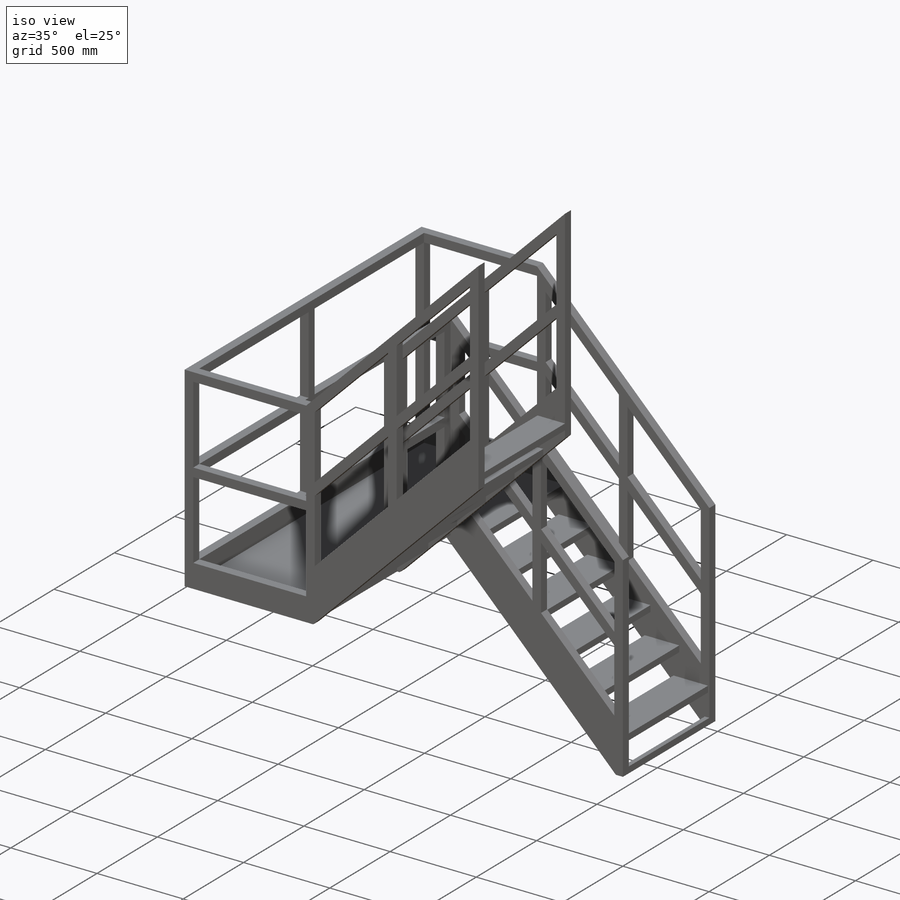
[diagram: iso view]
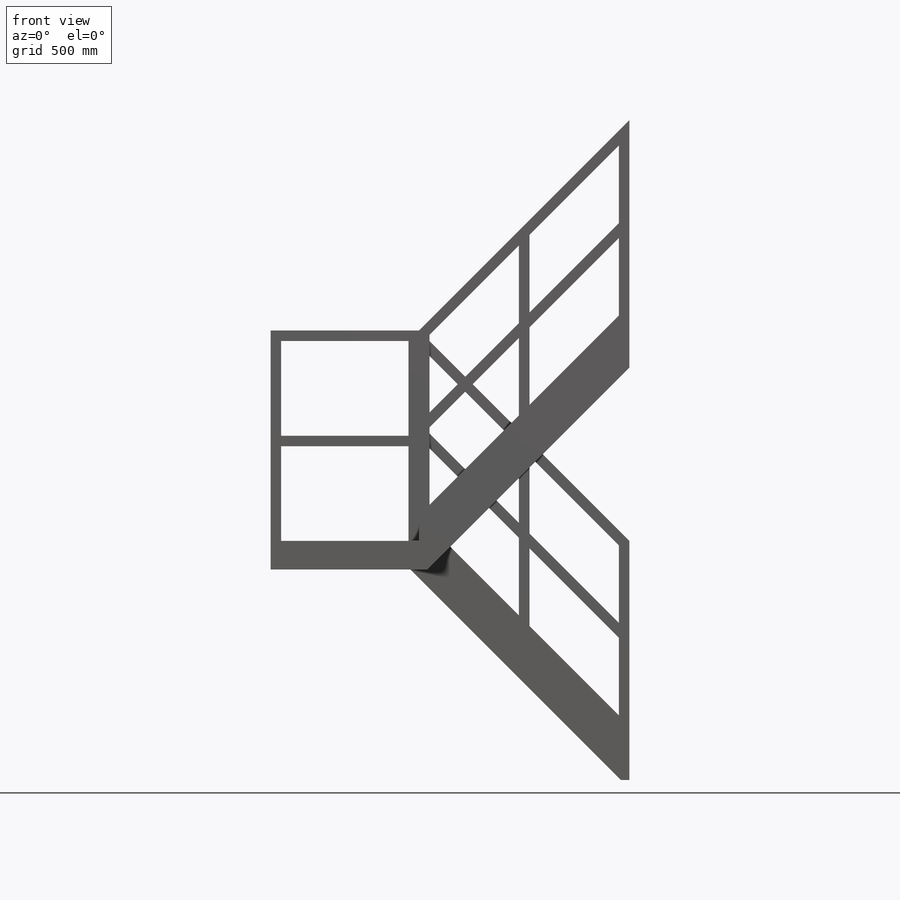
[diagram: front view]
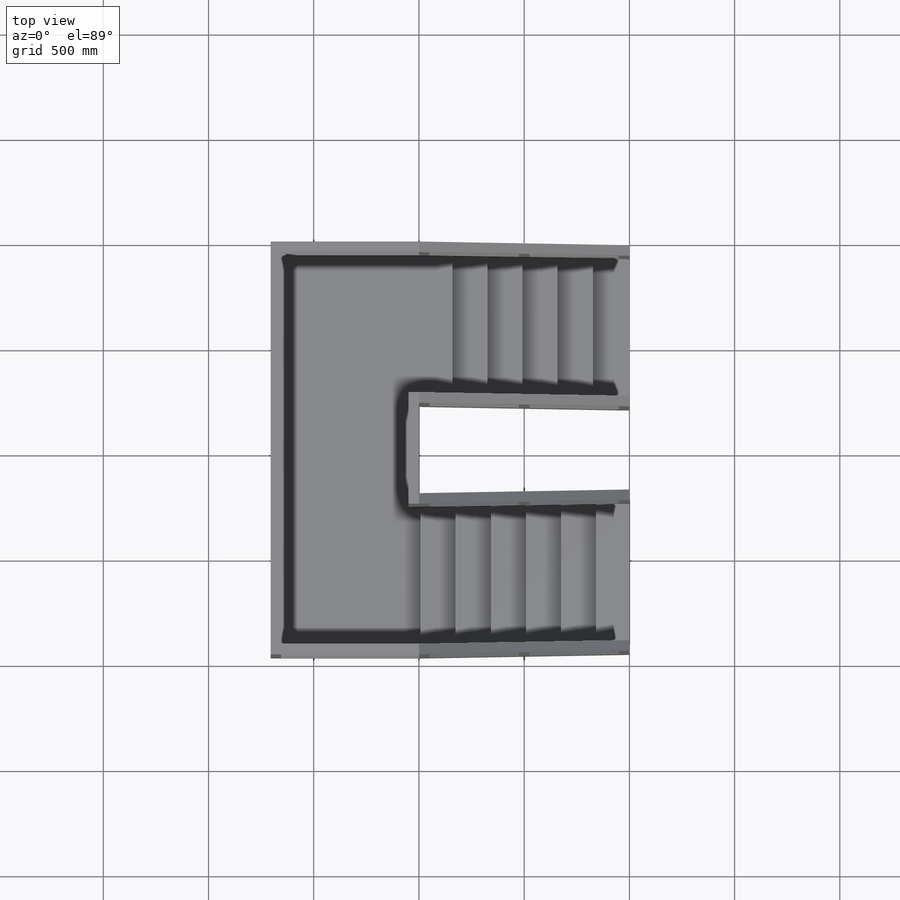
[diagram: top view]
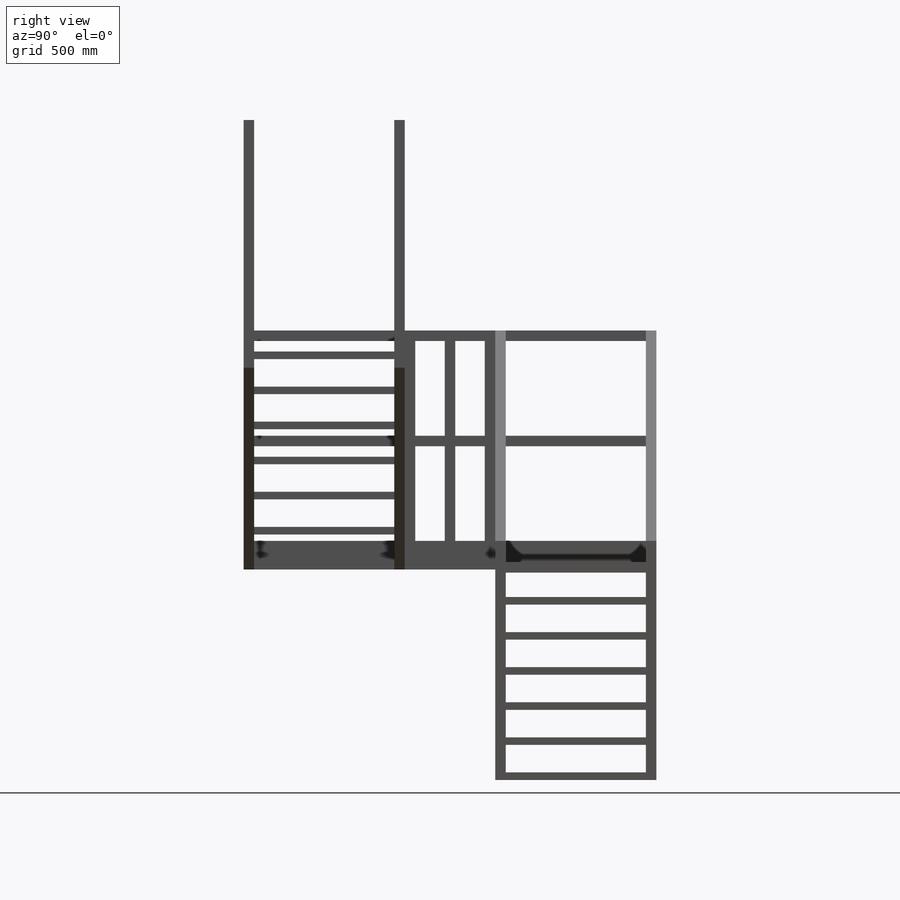
[diagram: right view]
SOLIDWORKS PART (.sldprt)
format: sldprt  version: not decoded by parser v0  size: 822,784 bytes
history: native  units: mm
features: sketch x17, cut_extrude x10, extrude x5, plane x4, material x1, shell x1, pattern_linear x1, pattern_circular x1, move_body x1 + 1 further entry (+12 scaffold rows collapsed; 3 parser-record rows omitted)
feature tree (57):
  scaffold x12  (default folders/planes/origin — collapsed)
  material  "Baustahl Künz"
  plane  "Ebene vorne"
  plane  "Zustieg unten"
  plane  "Mitte Aufstieg"
  sketch  "Layout vorne"  dims[c1.D1=~1588.070596mm c1.Höhe=2000.0mm c1.minimale Breite=1490.0mm c1.maximale Breite=3500.0mm c1.Musterhöhe=3200.0mm c1.max. Breite=4000.0mm c2.max. Breite=3000.0mm c2.D1=~4420.41274mm c3.D1=45.0deg c4.D1=~3545.577014mm c4.Treppenwinkel=45.0deg c4.D2=~937.935918mm c5.D2=~482.561018mm c5.D1=~1366.186817mm c5.Treppenwinkel=45.0deg c6.D1=~506.177258mm c6.D3=705.0mm c7.D1=~530.971122mm c7.D2=700.0mm c8.D1=~1098.939741mm c9.D1=1000.0mm c9.Treppenhöhe=1000.0mm c9.D2=700.0mm c9.D4=36.0mm c9.D5=1100.0mm c9.D6=41.0mm c9.D7=36.0mm c9.D8=~54.447222mm c9.D9=700.0mm c9.D10=700.0mm c10.D9=750.0mm c10.D10=9200.0mm c11.D10=750.0mm c11.D11=41.0mm c11.D6=36.0mm c11.D7=41.0mm c11.D2=~237.234541mm c12.D2=1100.0mm]
  sketch  "Grundriss"  dims[D1=430.0mm D2=766.0mm]
  sketch  "Skizze20"  dims[D1=1226.7662mm D2=~569.191234mm]
  plane  "Ausstieg oben"
  extrude  "Steuerfeature"  [1 undecoded]
  sketch  "Skizze2"
  extrude  "Aufsatz-Linear austragen2"  [1 undecoded]
  shell  "Wandung1"  Thickness=50mm
  parser-record x3  (decoder bookkeeping rows leaked as tree rows — omitted from the tree; the rows remain in map.json)
  sketch  "Skizze5"  dims[c1.D1=50.0mm c1.D2=50.0mm c1.D3=100.0mm c1.D4=950.0mm c2.D1=~74.605434mm c2.D2=100.0mm c2.D3=50.0mm c2.D4=~62.23976mm]
  cut_extrude  "Schnitt-Linear austragen2"  [1 undecoded]
  sketch  "Skizze7"  dims[c1.D1=~97.596687mm c1.D2=~81.833899mm c1.D3=~68.695864mm c2.D1=~81.388571mm]
  cut_extrude  "Schnitt-Linear austragen4"  [1 undecoded]
  sketch  "Skizze6"
  cut_extrude  "Schnitt-Linear austragen3"  [1 undecoded]
  sketch  "Skizze8"  dims[c1.D1=211.0mm c1.D2=~60.74261mm c2.D2=50.0mm c2.D3=50.0mm c2.D4=~66.645596mm]
  cut_extrude  "Schnitt-Linear austragen5"  [1 undecoded]
  sketch  "Skizze9"  dims[D1=50.0mm]
  extrude  "Aufsatz-Linear austragen3"  [1 undecoded]
  sketch  "Skizze3"
  cut_extrude  "Schnitt-Linear austragen1"  [1 undecoded]
  sketch  "Skizze10"
  extrude  "Aufsatz-Linear austragen4"  [1 undecoded]
  sketch  "Skizze11"  dims[c1.D1=~35.078064mm c2.D1=~89.448232mm]
  cut_extrude  "Schnitt-Linear austragen6"  [1 undecoded]
  sketch  "Skizze12"  dims[D1=~40.974092mm D2=~47.215314mm]
  cut_extrude  "Schnitt-Linear austragen7"  [1 undecoded]
  sketch  "Skizze15"  dims[D1=36.0mm D2=200.0mm Trittabstand 1. Stufe=~166.666667mm D4=655.0mm]
  extrude  "Treppenstufe"  [1 undecoded]
  pattern_linear  "Muster Treppenstufe"  Count1=6 Count2=1 Spacing1=235.70226mm Spacing2=50mm Anzahl Stufen=6 Stufenabstand Schräg=235.70226mm
  pattern_circular  "drehen 2tes Podest"  Count=2 Angle=180deg
  move_body  "verschieben 2tes Podest"
  "Deckungsgleich1"
  cut_extrude  "Schnitt-2-Podeste"  [1 undecoded]
  sketch  "Skizze19"  dims[D1=~2044.752515mm D2=~649.072423mm]
  sketch  "Muster_Rahmen"  dims[c1.D1=~12433.383223mm c1.D2=~9487.889248mm c2.D1=1000.0mm c2.D2=1000.0mm c3.D1=2000.0mm c3.D2=90.0deg c3.D3=0.0mm]
  cut_extrude  "Schnitt-unten"  [1 undecoded]
  cut_extrude  "Schnitt-oben"  [1 undecoded]
  sketch  "Skizze19<3>"  dims[D2=50.0mm]
decode coverage: 16 of 36 modeling features carry decoded parameters; 1 rows unclassified (native names shown)
note: ~ marks probable driven/reference dimensions
note: 15 parameter values undecoded
summary: no parameter record found for 15 features
note: suppression state not decoded; provenance and decode notes live in map.json
